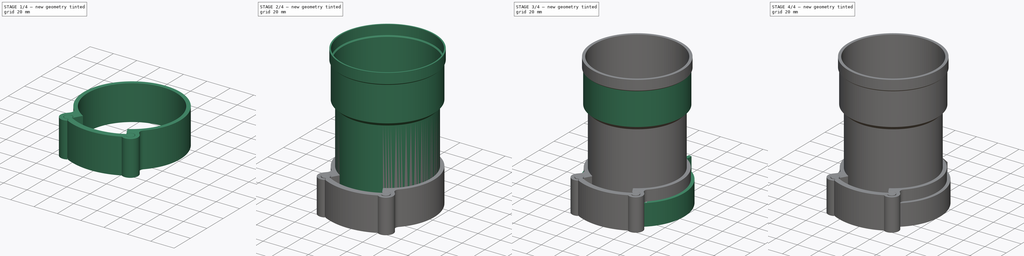
[diagram: build sequence overview — one tinted view per stage of 4, left to right]
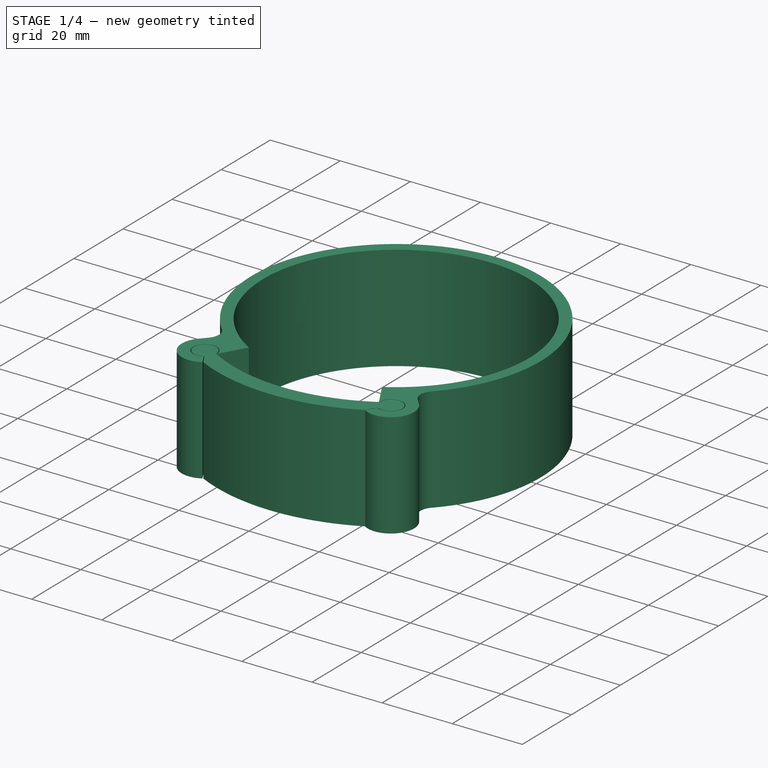
[diagram: stage 1 of 4 — iso view after this stage's code; geometry added in this stage tinted green]
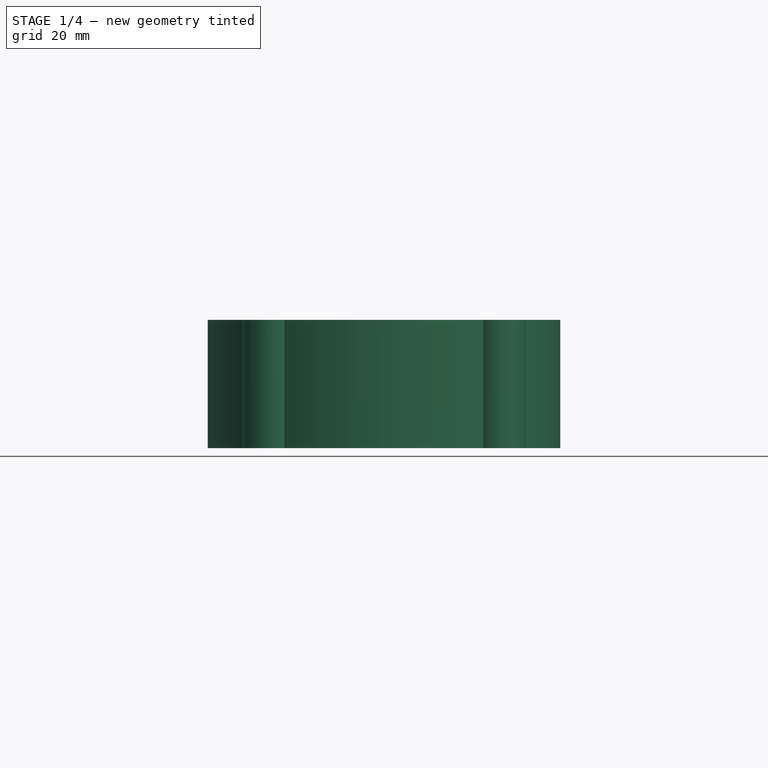
[diagram: stage 1 of 4 — front view after this stage's code; geometry added in this stage tinted green]
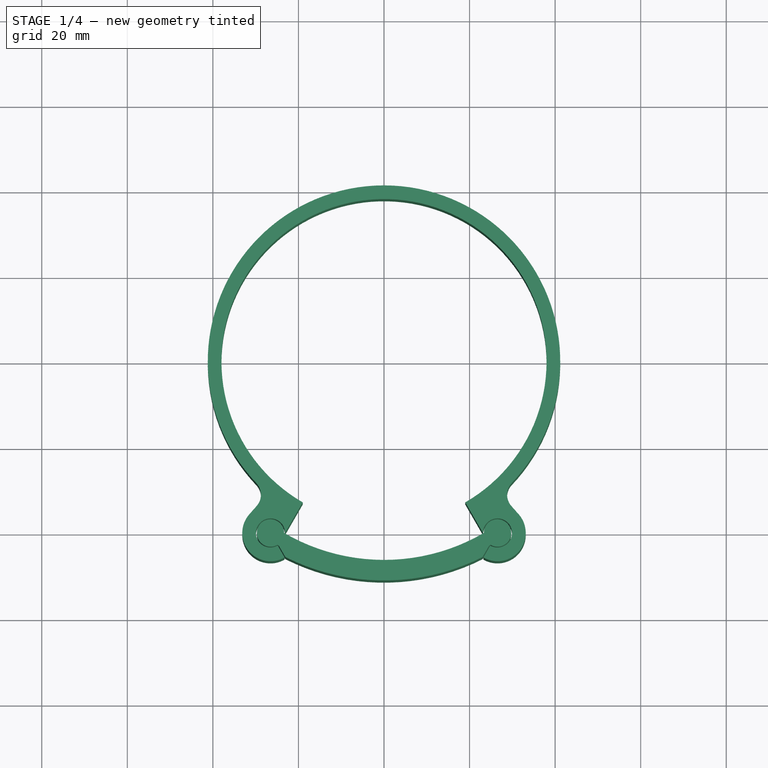
[diagram: stage 1 of 4 — top view after this stage's code; geometry added in this stage tinted green]
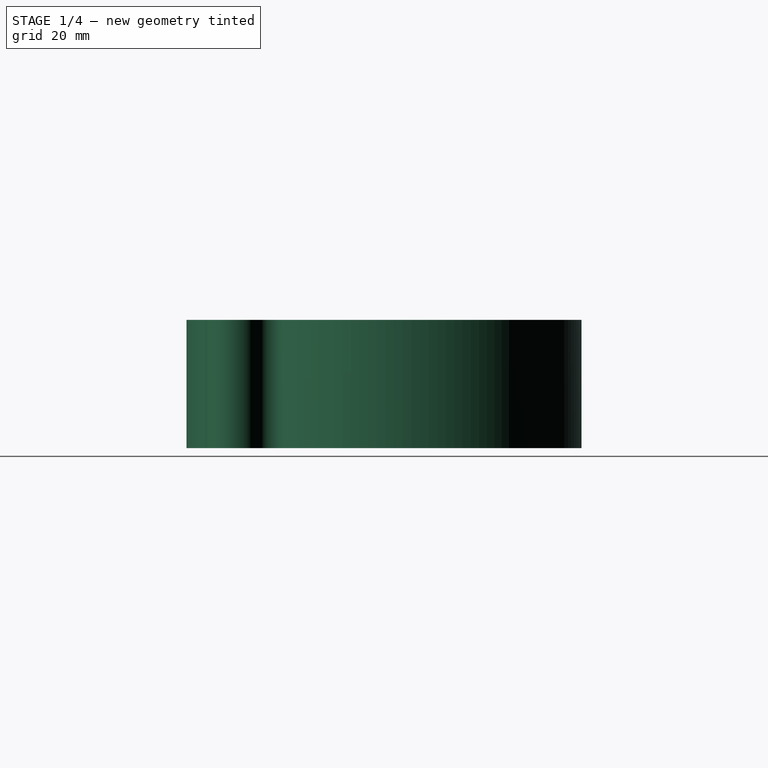
[diagram: stage 1 of 4 — right view after this stage's code; geometry added in this stage tinted green]
FCSTD DOCUMENT  (FreeCAD 1.0R39109 (Git))
Label: RainPipeParts
License: All rights reserved
LicenseURL: http://en.wikipedia.org/wiki/All_rights_reserved
objects: Sketcher::SketchObject×8, PartDesign::Body×5, PartDesign::Fillet×4, PartDesign::Pad×3, PartDesign::Plane×2, PartDesign::Pocket×2, PartDesign::Chamfer×2, PartDesign::Revolution×2, PartDesign::ShapeBinder×1
note: 63 computed .brp shape members not serialized (recipe doc carries the construction recipe); baked Part::Feature solids carry a one-line shape summary decoded from their .brp

FEATURE [PartDesign::Body] Body002  label="Joiner_vase"
  AllowCompound = false
  Group = -> [Sketch005,Revolution001]
  Origin = -> Origin002
  Tip = -> Revolution001
FEATURE [Sketcher::SketchObject] Sketch006
  ArcFitTolerance = 1e-06
  AttachmentSupport = -> [XY_Plane002]
  FullyConstrained = true
  MakeInternals = false
  MapMode = 5
  expr: Constraints[32] = .Constraints.Thickness + 0.2 mm
  expr: Constraints[55] = .Constraints.Thickness * 2
  sketch-geometry (21):
    g0: ArcOfCircle CenterX=0 CenterY=0 CenterZ=0 NormalX=0 NormalY=0 NormalZ=1 AngleXU=0 Radius=38 StartAngle=5.23599 EndAngle=10.472
    g1: LineSegment StartX=19 StartY=-32.909 StartZ=0 EndX=23.1325 EndY=-40.0667 EndZ=0
    g2: LineSegment [constr] StartX=-19 StartY=-32.909 StartZ=0 EndX=19 EndY=-32.909 EndZ=0
    g3: ArcOfCircle CenterX=0 CenterY=0 CenterZ=0 NormalX=0 NormalY=0 NormalZ=1 AngleXU=0 Radius=41.2 StartAngle=5.43508 EndAngle=10.2729
    g4: LineSegment [constr] StartX=-27.2498 StartY=-30.9013 StartZ=0 EndX=-25.1333 EndY=-28.5012 EndZ=0
    g5: LineSegment StartX=-19 StartY=-32.909 StartZ=0 EndX=-23.1325 EndY=-40.0667 EndZ=0
    g6: LineSegment [constr] StartX=-19 StartY=-32.909 StartZ=0 EndX=0 EndY=0 EndZ=0
    g7: LineSegment [constr] StartX=19 StartY=-32.909 StartZ=0 EndX=0 EndY=0 EndZ=0
    g8: LineSegment [constr] StartX=27.2498 StartY=-30.9013 StartZ=0 EndX=25.1333 EndY=-28.5012 EndZ=0
    g9: LineSegment StartX=-27.2498 StartY=-30.9013 StartZ=0 EndX=-31.4828 EndY=-35.7015 EndZ=0
    g10: LineSegment StartX=27.2498 StartY=-30.9013 StartZ=0 EndX=31.4828 EndY=-35.7015 EndZ=0
    g11: ArcOfCircle CenterX=-26.5325 CenterY=-40.0667 CenterZ=0 NormalX=0 NormalY=0 NormalZ=1 AngleXU=0 Radius=3.4 StartAngle=-3.82e-14 EndAngle=5.23599
    g12: LineSegment [constr] StartX=-23.1325 StartY=-40.0667 StartZ=0 EndX=-24.8325 EndY=-43.0112 EndZ=0
    g13: LineSegment StartX=-24.8325 StartY=-43.0112 StartZ=0 EndX=-23.2325 EndY=-45.7825 EndZ=0
    g14: ArcOfCircle CenterX=-26.5325 CenterY=-40.0667 CenterZ=0 NormalX=0 NormalY=0 NormalZ=1 AngleXU=0 Radius=6.6 StartAngle=2.41891 EndAngle=5.23599
    g15: LineSegment [constr] StartX=-31.4828 StartY=-35.7015 StartZ=0 EndX=-29.0827 EndY=-37.818 EndZ=0
    g16: LineSegment [constr] StartX=-29.0827 StartY=-37.818 StartZ=0 EndX=-26.5325 EndY=-40.0667 EndZ=0
    g17: ArcOfCircle CenterX=26.5325 CenterY=-40.0667 CenterZ=0 NormalX=0 NormalY=0 NormalZ=1 AngleXU=0 Radius=6.6 StartAngle=4.18879 EndAngle=7.00587
    g18: LineSegment [constr] StartX=23.1325 StartY=-40.0667 StartZ=0 EndX=24.8325 EndY=-43.0112 EndZ=0
    g19: LineSegment StartX=24.8325 StartY=-43.0112 StartZ=0 EndX=23.2325 EndY=-45.7825 EndZ=0
    g20: ArcOfCircle CenterX=26.5325 CenterY=-40.0667 CenterZ=0 NormalX=0 NormalY=0 NormalZ=1 AngleXU=0 Radius=3.4 StartAngle=4.18879 EndAngle=9.42478
  constraints (58):
    c: Radius(g0) = 38
    c: Coincident(g1,g0)
    c: Coincident(g2,g0)
    c: Coincident(g2,g0)
    c: Horizontal(g2)
    c: Coincident(g4,g3)
    c: PointOnObject(g4,g0)
    c: Distance(g4) = 3.2  'Thickness'
    c: Coincident(g3,g0)
    c: PointOnObject(g0,g4)
    c: Coincident(g5,g0)
    c: Coincident(g6,g0)
    c: Coincident(g6,g0)
    c: Coincident(g7,g0)
    c: Angle(g6,g7) = 1.0472
    c: Coincident(g8,g3)
    c: PointOnObject(g8,g0)
    c: Coincident(g7,g0)
    c: PointOnObject(g0,g8)
    c: Equal(g1,g5)
    c: Coincident(g-1,g0)  '__ANCHOR__'
    c: Parallel(g5,g6)
    c: Parallel(g7,g1)
    c: Coincident(g9,g3)
    c: Parallel(g9,g4)
    c: Coincident(g10,g3)
    c: Parallel(g10,g8)
    c: Coincident(g11,g5)
    c: Coincident(g12,g5)
    c: Coincident(g12,g11)
    c: Parallel(g12,g5)
    c: Coincident(g13,g11)
    c: Radius(g11) = 3.4
    c: Coincident(g14,g11)
    c: Coincident(g14,g13)
    c: Tangent(g9,g14) = -1.5708
    c: Coincident(g15,g9)
    c: PointOnObject(g15,g11)
    c: PointOnObject(g11,g15)
    c: Equal(g15,g4)
    c: Coincident(g16,g15)
    c: Coincident(g16,g11)
    c: Equal(g16,g12)
    c: Equal(g9,g10)
    c: Tangent(g10,g17) = 1.5708
    c: Equal(g17,g14)
    c: Coincident(g18,g1)
    c: Coincident(g19,g18)
    c: Parallel(g1,g18)
    c: Coincident(g19,g17)
    c: Equal(g18,g12)
    c: Equal(g20,g11)
    c: Coincident(g20,g17)
    c: Coincident(g20,g1)
    c: PointOnObject(g20,g19)
    c: Distance(g9) = 6.4
    c: PointOnObject(g11,g13)
    c: PointOnObject(g17,g19)
FEATURE [PartDesign::Pad] Pad001
  Direction = (0,0,1)
  Length = 30
  Length2 = 10
  Profile = -> Sketch006
  ReferenceAxis = -> Sketch006 [N_Axis]
  Suppressed = false
  Type = 0
FEATURE [PartDesign::ShapeBinder] ShapeBinder
  Support = -> [Sketch006]
  TraceSupport = false
FEATURE [PartDesign::Fillet] Fillet003
  Base = -> Pad001 [Edge26,Edge23]
  BaseFeature = -> Pad001
  Radius = 4
  SupportTransform = false
  Suppressed = false
  UseAllEdges = false
FEATURE [PartDesign::Body] Body003  label="JoinerFix"
  AllowCompound = false
  Group = -> [Sketch006,Pad001,Fillet003,Chamfer001,Fillet004]
  Origin = -> Origin003
  Tip = -> Fillet004
FEATURE [Sketcher::SketchObject] Sketch007
  ArcFitTolerance = 1e-06
  AttachmentSupport = -> [XY_Plane003]
  ExternalGeometry = -> [ShapeBinder]
  FullyConstrained = true
  MakeInternals = false
  MapMode = 5
  sketch-geometry (16):
    g0: ArcOfCircle CenterX=0 CenterY=0 CenterZ=0 NormalX=0 NormalY=0 NormalZ=1 AngleXU=0 Radius=46.3654 StartAngle=4.18505 EndAngle=5.23972
    g1: ArcOfCircle CenterX=0 CenterY=0 CenterZ=0 NormalX=0 NormalY=0 NormalZ=1 AngleXU=0 Radius=51.1708 StartAngle=4.24488 EndAngle=5.1799
    g2: LineSegment [constr] StartX=-27.2498 StartY=-30.9013 StartZ=0 EndX=-25.1333 EndY=-28.5012 EndZ=0
    g3: ArcOfCircle CenterX=-26.5325 CenterY=-40.0667 CenterZ=0 NormalX=0 NormalY=0 NormalZ=1 AngleXU=0 Radius=3.2 StartAngle=-4.26e-14 EndAngle=5.23599
    g4: LineSegment [constr] StartX=-23.3325 StartY=-40.0667 StartZ=0 EndX=-26.5325 EndY=-40.0667 EndZ=0
    g5: LineSegment [constr] StartX=-23.3325 StartY=-40.0667 StartZ=0 EndX=-24.9325 EndY=-42.838 EndZ=0
    g6: LineSegment [constr] StartX=-23.1325 StartY=-40.0667 StartZ=0 EndX=-23.3325 EndY=-40.0667 EndZ=0
    g7: ArcOfCircle CenterX=0 CenterY=0 CenterZ=0 NormalX=0 NormalY=0 NormalZ=1 AngleXU=0 Radius=49.5654 StartAngle=4.1853 EndAngle=4.19336
    g8: LineSegment StartX=-24.5864 StartY=-43.0377 StartZ=0 EndX=-23.0609 EndY=-45.6799 EndZ=0
    g9: LineSegment [constr] StartX=-24.5864 StartY=-43.0377 StartZ=0 EndX=-24.7596 EndY=-43.1377 EndZ=0
    g10: ArcOfCircle [constr] CenterX=-26.5325 CenterY=-40.0667 CenterZ=0 NormalX=0 NormalY=0 NormalZ=1 AngleXU=0 Radius=6.6 StartAngle=5.23599 EndAngle=5.2663
    g11: ArcOfCircle CenterX=26.5325 CenterY=-40.0667 CenterZ=0 NormalX=0 NormalY=0 NormalZ=1 AngleXU=0 Radius=3.2 StartAngle=4.18879 EndAngle=9.42478
    g12: LineSegment [constr] StartX=24.9325 StartY=-42.838 StartZ=0 EndX=23.3325 EndY=-40.0667 EndZ=0
    g13: ArcOfCircle [constr] CenterX=26.5325 CenterY=-40.0667 CenterZ=0 NormalX=0 NormalY=0 NormalZ=1 AngleXU=0 Radius=6.6 StartAngle=4.15848 EndAngle=4.18879
    g14: LineSegment StartX=23.0609 StartY=-45.6799 StartZ=0 EndX=24.5864 EndY=-43.0377 EndZ=0
    g15: ArcOfCircle CenterX=0 CenterY=0 CenterZ=0 NormalX=0 NormalY=0 NormalZ=1 AngleXU=0 Radius=49.5654 StartAngle=5.23142 EndAngle=5.23948
  constraints (42):
    c: Coincident(g1,g0)
    c: Coincident(g-3,g0)
    c: Coincident(g2,g-3)
    c: PointOnObject(g2,g-4)
    c: PointOnObject(g-3,g2)
    c: Coincident(g3,g-5)
    c: Coincident(g4,g3)
    c: Coincident(g4,g3)
    c: Equal(g4,g2)
    c: Coincident(g0,g3)
    c: Coincident(g5,g0)
    c: Coincident(g5,g3)
    c: Equal(g4,g5)
    c: Coincident(g6,g-9)
    c: Coincident(g6,g0)
    c: PointOnObject(g3,g6)
    c: Coincident(g8,g7)
    c: Parallel(g8,g-7)
    c: Coincident(g9,g7)
    c: PointOnObject(g9,g-7)
    c: Perpendicular(g9,g-7)
    c: Equal(g6,g9)
    c: Coincident(g7,g3)
    c: Coincident(g-3,g7)
    c: Coincident(g1,g8)
    c: Coincident(g10,g3)
    c: Coincident(g10,g-7)
    c: Coincident(g10,g1)
    c: Coincident(g11,g-6)
    c: Equal(g11,g3)
    c: Coincident(g0,g11)
    c: Coincident(g12,g11)
    c: Coincident(g12,g0)
    c: Equal(g12,g5)
    c: Coincident(g13,g11)
    c: Coincident(g13,g-8)
    c: Coincident(g13,g1)
    c: Coincident(g14,g1)
    c: Parallel(g14,g-8)
    c: Coincident(g15,g11)
    c: Coincident(g15,g14)
    c: Coincident(g-3,g15)
FEATURE [PartDesign::Pad] Pad002
  Direction = (0,0,1)
  Length = 30
  Length2 = 10
  Profile = -> Sketch007
  ReferenceAxis = -> Sketch007 [N_Axis]
  Suppressed = false
  Type = 0
  expr: Length = <<Pad001>>.Length
FEATURE [PartDesign::Body] Body004  label="JoinerFixLock"
  AllowCompound = false
  Group = -> [ShapeBinder,Sketch007,Pad002]
  Origin = -> Origin004
  Tip = -> Pad002
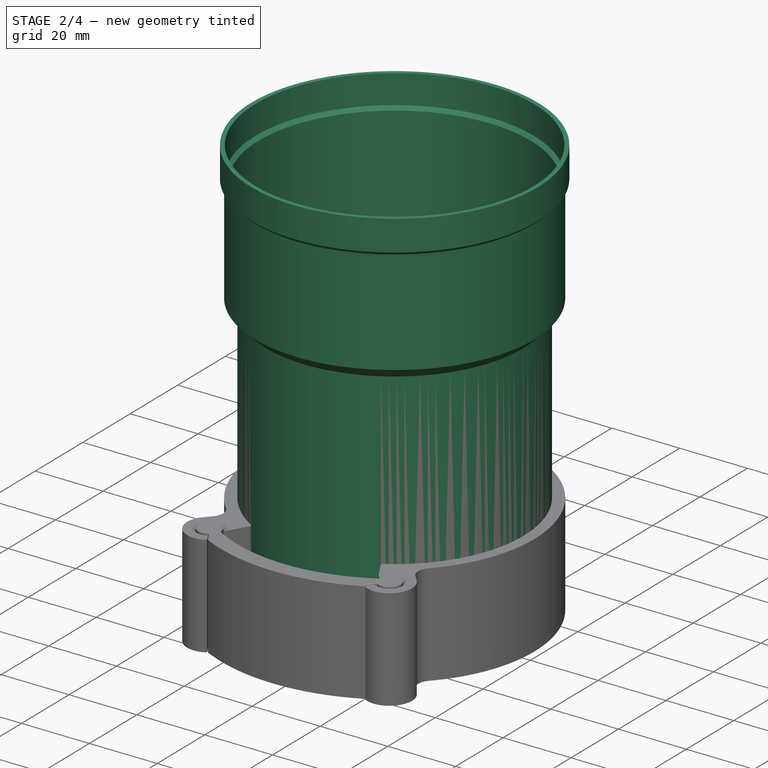
[diagram: stage 2 of 4 — iso view after this stage's code; geometry added in this stage tinted green]
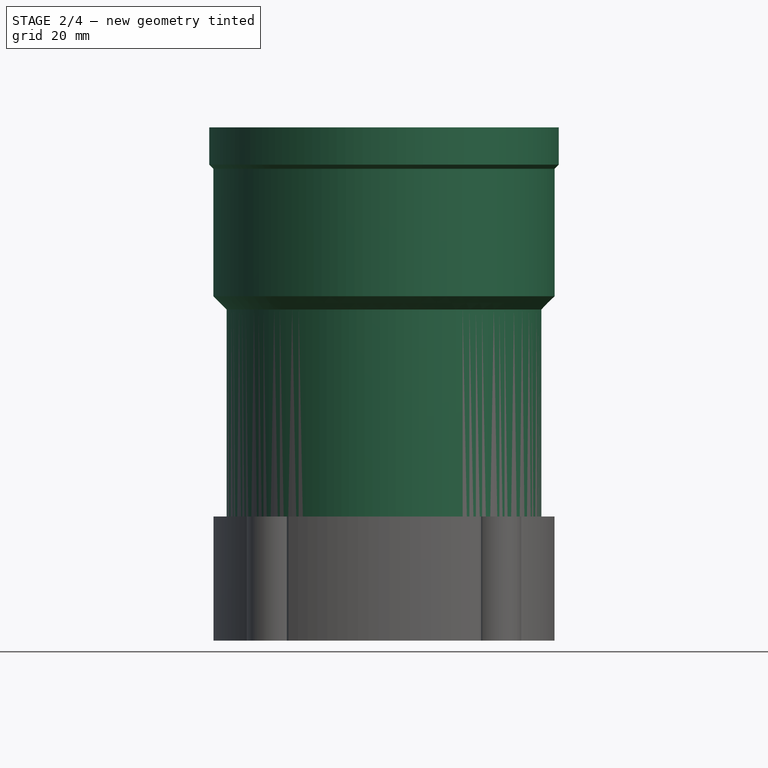
[diagram: stage 2 of 4 — front view after this stage's code; geometry added in this stage tinted green]
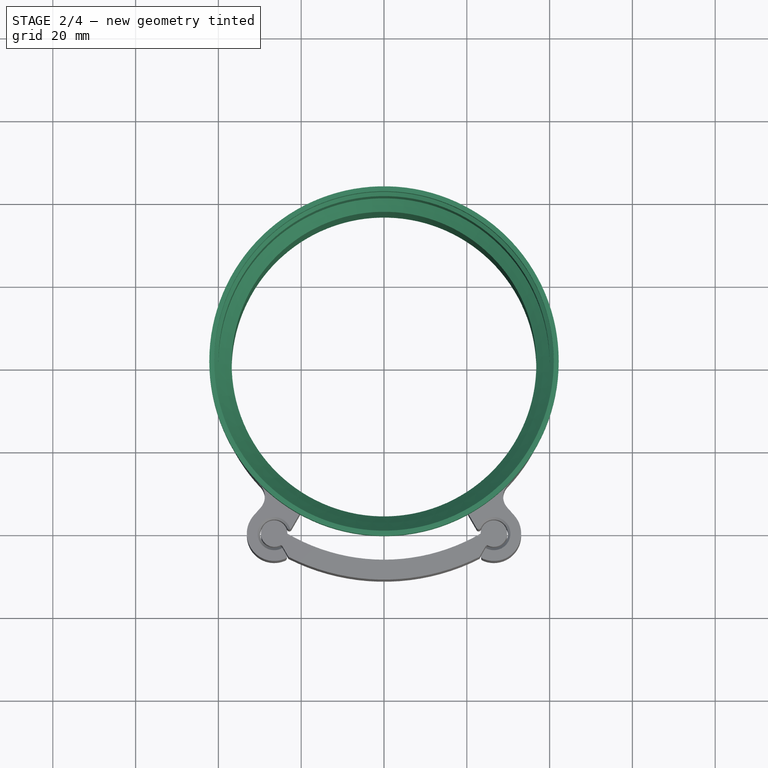
[diagram: stage 2 of 4 — top view after this stage's code; geometry added in this stage tinted green]
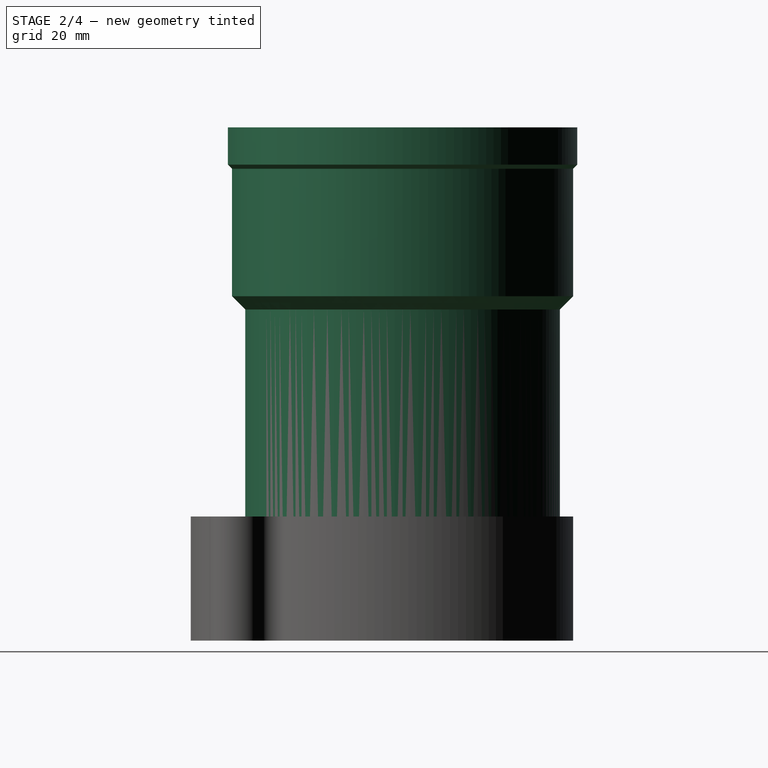
[diagram: stage 2 of 4 — right view after this stage's code; geometry added in this stage tinted green]
FEATURE [PartDesign::Body] Body001  label="Joiner"
  AllowCompound = false
  Group = -> [Sketch004,Revolution]
  Origin = -> Origin001
  Tip = -> Revolution
FEATURE [Sketcher::SketchObject] Sketch005
  ArcFitTolerance = 1e-06
  AttachmentSupport = -> [XZ_Plane001]
  FullyConstrained = true
  MakeInternals = false
  MapMode = 5
  Placement = pos=(0,0,0) rot=(1,0,0;1.5708rad)
  sketch-geometry (15):
    g0: LineSegment StartX=-38 StartY=0 StartZ=0 EndX=-36.8 EndY=0 EndZ=0
    g1: LineSegment StartX=-36.8 StartY=0 StartZ=0 EndX=-36.8 EndY=80.4971 EndZ=0
    g2: LineSegment StartX=-36.8 StartY=80.4971 StartZ=0 EndX=-40 EndY=83.6971 EndZ=0
    g3: LineSegment StartX=-40 StartY=83.6971 StartZ=0 EndX=-40 EndY=114.497 EndZ=0
    g4: LineSegment StartX=-40 StartY=114.497 StartZ=0 EndX=-41 EndY=115.497 EndZ=0
    g5: LineSegment StartX=-41 StartY=115.497 StartZ=0 EndX=-41 EndY=124 EndZ=0
    g6: LineSegment StartX=-41 StartY=124 StartZ=0 EndX=-42.2 EndY=124 EndZ=0
    g7: LineSegment StartX=-42.2 StartY=124 StartZ=0 EndX=-42.2 EndY=115 EndZ=0
    g8: LineSegment StartX=-42.2 StartY=115 StartZ=0 EndX=-41.2 EndY=114 EndZ=0
    g9: LineSegment StartX=-41.2 StartY=114 StartZ=0 EndX=-41.2 EndY=83.2 EndZ=0
    g10: LineSegment StartX=-41.2 StartY=83.2 StartZ=0 EndX=-38 EndY=80 EndZ=0
    g11: LineSegment StartX=-38 StartY=80 StartZ=0 EndX=-38 EndY=0 EndZ=0
    g12: LineSegment [constr] StartX=-41 StartY=115.497 StartZ=0 EndX=-41.8485 EndY=114.649 EndZ=0
    g13: LineSegment [constr] StartX=-40 StartY=83.6971 StartZ=0 EndX=-40.8485 EndY=82.8485 EndZ=0
    g14: LineSegment [constr] StartX=-41.2 StartY=114 StartZ=0 EndX=-40 EndY=114 EndZ=0
  constraints (45):
    c: Horizontal(g0)
    c: Coincident(g0,g1)
    c: Vertical(g1)
    c: Coincident(g1,g2)
    c: Coincident(g2,g3)
    c: Vertical(g3)
    c: Coincident(g3,g4)
    c: Coincident(g4,g5)
    c: Vertical(g5)
    c: Coincident(g5,g6)
    c: Coincident(g6,g7)
    c: Vertical(g7)
    c: Coincident(g7,g8)
    c: Coincident(g8,g9)
    c: Vertical(g9)
    c: Coincident(g9,g10)
    c: Coincident(g10,g11)
    c: Coincident(g11,g0)
    c: Vertical(g11)
    c: Angle(g2,g1) = 2.35619
    c: PointOnObject(g0,g-1)
    c: Parallel(g2,g10)
    c: Parallel(g10,g8)
    c: Parallel(g8,g4)
    c: Coincident(g12,g4)
    c: PointOnObject(g12,g8)
    c: Perpendicular(g12,g8)
    c: Coincident(g13,g2)
    c: PointOnObject(g13,g10)
    c: Perpendicular(g10,g13)
    c: DistanceX(g0,g0) = 1.2
    c: Equal(g0,g13)
    c: Equal(g13,g12)
    c: Equal(g12,g6)
    c: Horizontal(g6)
    c: DistanceX(g3,g-1) = 40
    c: DistanceX(g5,g3) = 1
    c: DistanceX(g0,g-1) = 38
    c: DistanceY(g0,g10) = 80
    c: Coincident(g14,g8)
    c: PointOnObject(g14,g3)
    c: Horizontal(g14)
    c: Equal(g6,g14)
    c: DistanceY(g8,g6) = 10
    c: DistanceY(g10,g6) = 44
FEATURE [PartDesign::Revolution] Revolution001
  Angle = 360
  Angle2 = 60
  Axis = (0,2e-16,1)
  Base = (0,0,0)
  Placement = pos=(0,0,0) rot=(1,0,0;1.5708rad)
  Profile = -> Sketch005
  ReferenceAxis = -> Sketch005 [V_Axis]
  Suppressed = false
  Type = 0
FEATURE [PartDesign::Chamfer] Chamfer001
  Angle = 45
  Base = -> Fillet003 [Edge25,Edge32,Edge17,Edge10]
  BaseFeature = -> Fillet003
  ChamferType = 0
  FlipDirection = false
  Size = 0.6
  Size2 = 1
  SupportTransform = false
  Suppressed = false
  UseAllEdges = false
FEATURE [PartDesign::Fillet] Fillet004
  Base = -> Chamfer001 [Edge19,Edge15,Edge24,Edge34,Edge44,Edge47,Edge30,Edge27]
  BaseFeature = -> Chamfer001
  Radius = 0.6
  SupportTransform = false
  Suppressed = false
  UseAllEdges = false
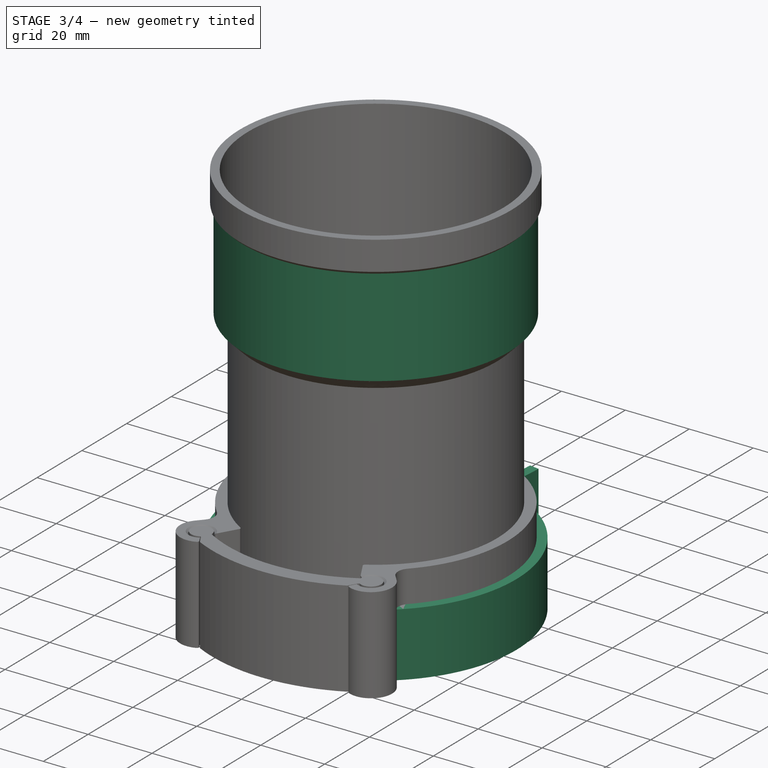
[diagram: stage 3 of 4 — iso view after this stage's code; geometry added in this stage tinted green]
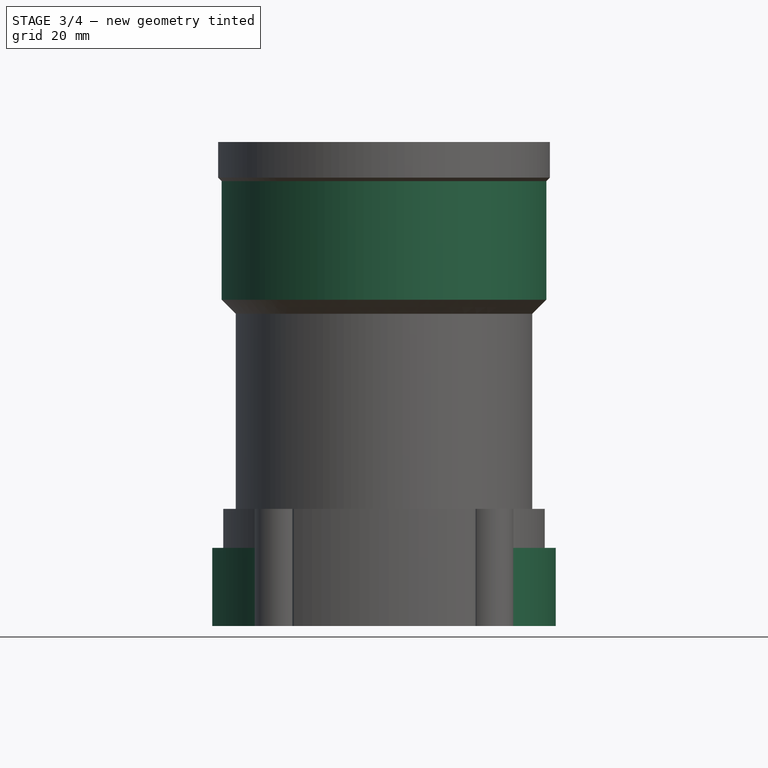
[diagram: stage 3 of 4 — front view after this stage's code; geometry added in this stage tinted green]
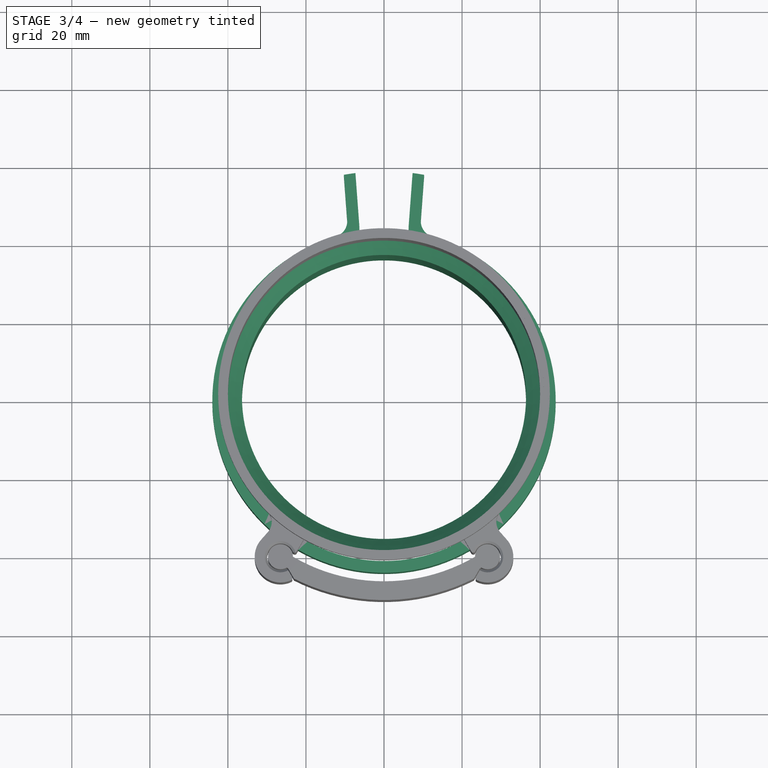
[diagram: stage 3 of 4 — top view after this stage's code; geometry added in this stage tinted green]
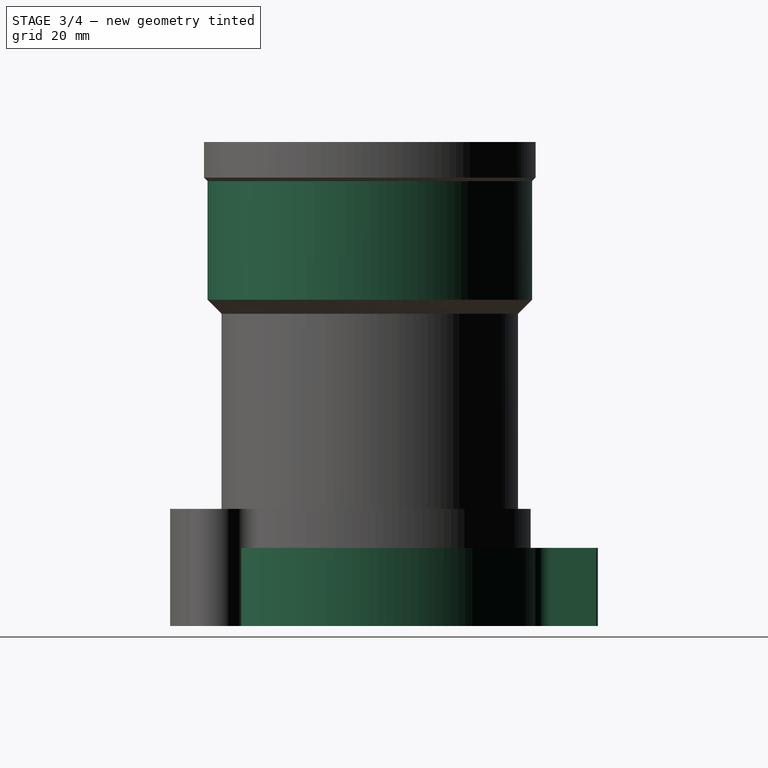
[diagram: stage 3 of 4 — right view after this stage's code; geometry added in this stage tinted green]
FEATURE [Sketcher::SketchObject] Sketch
  ArcFitTolerance = 0
  AttachmentSupport = -> [XY_Plane]
  FullyConstrained = true
  MakeInternals = false
  MapMode = 5
  sketch-geometry (16):
    g0: ArcOfCircle CenterX=0 CenterY=0 CenterZ=0 NormalX=0 NormalY=0 NormalZ=1 AngleXU=0 Radius=44 StartAngle=1.78123 EndAngle=7.64355
    g1: LineSegment [constr] StartX=-9.19095 StartY=43.0294 StartZ=0 EndX=9.19095 EndY=43.0294 EndZ=0
    g2: ArcOfCircle CenterX=0 CenterY=0 CenterZ=0 NormalX=0 NormalY=0 NormalZ=1 AngleXU=0 Radius=41 StartAngle=1.71767 EndAngle=7.70711
    g3: LineSegment [constr] StartX=-9.19095 StartY=43.0294 StartZ=0 EndX=-8.5643 EndY=40.0955 EndZ=0
    g4: LineSegment StartX=-9.19095 StartY=43.0294 StartZ=0 EndX=-10.2974 EndY=57.9885 EndZ=0
    g5: LineSegment StartX=-7.32254 StartY=58.4387 StartZ=0 EndX=-6 EndY=40.5586 EndZ=0
    g6: LineSegment StartX=9.19095 StartY=43.0294 StartZ=0 EndX=10.2974 EndY=57.9885 EndZ=0
    g7: LineSegment StartX=7.32254 StartY=58.4387 StartZ=0 EndX=6 EndY=40.5586 EndZ=0
    g8: ArcOfCircle CenterX=0 CenterY=0 CenterZ=0 NormalX=0 NormalY=0 NormalZ=1 AngleXU=0 Radius=58.8957 StartAngle=1.69545 EndAngle=1.74654
    g9: ArcOfCircle CenterX=0 CenterY=0 CenterZ=0 NormalX=0 NormalY=0 NormalZ=1 AngleXU=0 Radius=58.8957 StartAngle=1.39505 EndAngle=1.44614
    g10: LineSegment [constr] StartX=-9.19095 StartY=43.0294 StartZ=0 EndX=-6.19912 EndY=43.2507 EndZ=0
    g11: LineSegment [constr] StartX=-3 StartY=40.5586 StartZ=0 EndX=0 EndY=0 EndZ=0
    g12: LineSegment [constr] StartX=0 StartY=0 StartZ=0 EndX=3 EndY=40.5586 EndZ=0
    g13: LineSegment [constr] StartX=-6 StartY=40.5586 StartZ=0 EndX=-3 EndY=40.5586 EndZ=0
    g14: LineSegment [constr] StartX=-3 StartY=40.5586 StartZ=0 EndX=3 EndY=40.5586 EndZ=0
    g15: LineSegment [constr] StartX=3 StartY=40.5586 StartZ=0 EndX=6 EndY=40.5586 EndZ=0
  constraints (44):
    c: Coincident(g1,g0)
    c: Coincident(g1,g0)
    c: Horizontal(g1)
    c: Coincident(g2,g0)
    c: Radius(g2) = 41
    c: Coincident(g13,g2)
    c: Coincident(g15,g2)
    c: Coincident(g3,g0)
    c: Distance(g3) = 3
    c: Coincident(g4,g0)
    c: Coincident(g5,g2)
    c: Coincident(g6,g0)
    c: Coincident(g7,g2)
    c: Coincident(g8,g0)
    c: Coincident(g8,g4)
    c: Coincident(g8,g5)
    c: Coincident(g9,g0)
    c: Coincident(g9,g6)
    c: Coincident(g9,g7)
    c: PointOnObject(g0,g3)
    c: Parallel(g5,g4)
    c: Parallel(g7,g6)
    c: Equal(g9,g8)
    c: Distance(g4) = 15
    c: PointOnObject(g3,g2)
    c: Coincident(g10,g0)
    c: PointOnObject(g10,g5)
    c: Perpendicular(g5,g10)
    c: Equal(g3,g10)
    c: DistanceX(g13,g15) = 12
    c: Coincident(g0,g-1)
    c: Coincident(g11,g0)
    c: Coincident(g12,g0)
    c: Coincident(g13,g14)
    c: Horizontal(g13)
    c: PointOnObject(g12,g13)
    c: Coincident(g14,g15)
    c: Horizontal(g15)
    c: Coincident(g12,g14)
    c: Coincident(g11,g13)
    c: Equal(g13,g15)
    c: DistanceX(g14,g14) = 6
    c: Parallel(g5,g11)
    c: Parallel(g7,g12)
FEATURE [PartDesign::Pad] Pad
  Direction = (0,0,1)
  Length = 20
  Length2 = 10
  Profile = -> Sketch
  ReferenceAxis = -> Sketch [N_Axis]
  Suppressed = false
  Type = 0
FEATURE [PartDesign::Fillet] Fillet
  Base = -> Pad [Edge8,Edge5]
  BaseFeature = -> Pad
  Radius = 4
  SupportTransform = false
  Suppressed = false
  UseAllEdges = false
FEATURE [PartDesign::Fillet] Fillet001
  Base = -> Fillet [Edge26,Edge28]
  BaseFeature = -> Fillet
  Radius = 5
  SupportTransform = false
  Suppressed = false
  UseAllEdges = false
  expr: Radius = <<Fillet>>.Radius + 1 mm
FEATURE [PartDesign::Body] Body  label="Clamp"
  AllowCompound = false
  Group = -> [Sketch,Pad,Fillet,Fillet001,Sketch003,DatumPlane,Sketch001,Pocket,DatumPlane001,Sketch002,Pocket001,Chamfer]
  Origin = -> Origin
  Tip = -> Chamfer
FEATURE [Sketcher::SketchObject] Sketch004
  ArcFitTolerance = 1e-06
  AttachmentSupport = -> [XZ_Plane]
  FullyConstrained = true
  MakeInternals = false
  MapMode = 5
  Placement = pos=(0,0,0) rot=(1,0,0;1.5708rad)
  sketch-geometry (12):
    g0: LineSegment StartX=-41.6 StartY=83.6 StartZ=0 EndX=-38 EndY=80 EndZ=0
    g1: LineSegment StartX=-38 StartY=80 StartZ=0 EndX=-38 EndY=0 EndZ=0
    g2: LineSegment StartX=-38 StartY=0 StartZ=0 EndX=-36.4 EndY=0 EndZ=0
    g3: LineSegment StartX=-36.4 StartY=0 StartZ=0 EndX=-36.4 EndY=80.6627 EndZ=0
    g4: LineSegment StartX=-36.4 StartY=80.6627 StartZ=0 EndX=-40 EndY=84.2627 EndZ=0
    g5: LineSegment StartX=-40 StartY=84.2627 StartZ=0 EndX=-40 EndY=124 EndZ=0
    g6: LineSegment StartX=-40 StartY=124 StartZ=0 EndX=-42.5 EndY=124 EndZ=0
    g7: LineSegment [constr] StartX=-40 StartY=84.2627 StartZ=0 EndX=-41.1314 EndY=83.1314 EndZ=0
    g8: LineSegment StartX=-42.5 StartY=124 StartZ=0 EndX=-42.5 EndY=114.9 EndZ=0
    g9: LineSegment StartX=-42.5 StartY=114.9 StartZ=0 EndX=-41.6 EndY=114 EndZ=0
    g10: LineSegment StartX=-41.6 StartY=114 StartZ=0 EndX=-41.6 EndY=83.6 EndZ=0
    g11: LineSegment [constr] StartX=-41.6 StartY=114 StartZ=0 EndX=-40 EndY=114 EndZ=0
  constraints (36):
    c: Coincident(g10,g0)
    c: Coincident(g0,g1)
    c: Vertical(g1)
    c: Coincident(g1,g2)
    c: Coincident(g2,g3)
    c: Vertical(g3)
    c: Coincident(g3,g4)
    c: Coincident(g4,g5)
    c: Vertical(g5)
    c: Coincident(g5,g6)
    c: Coincident(g6,g8)
    c: Horizontal(g6)
    c: DistanceX(g6,g6) = 2.5
    c: Coincident(g7,g4)
    c: PointOnObject(g7,g0)
    c: Equal(g2,g7)
    c: DistanceX(g5,g-1) = 40
    c: DistanceX(g1,g-1) = 38
    c: Coincident(g8,g9)
    c: Vertical(g8)
    c: Vertical(g10)
    c: DistanceX(g2,g2) = 1.6
    c: Coincident(g10,g9)
    c: Coincident(g11,g9)
    c: PointOnObject(g11,g5)
    c: Horizontal(g11)
    c: Equal(g7,g11)
    c: Horizontal(g2)
    c: PointOnObject(g1,g-1)
    c: Perpendicular(g0,g7)
    c: Angle(g4,g3) = 2.35619
    c: Parallel(g0,g4)
    c: DistanceY(g9,g6) = 10
    c: Parallel(g9,g0)
    c: DistanceY(g0,g6) = 44
    c: DistanceY(g1,g0) = 80
FEATURE [PartDesign::Revolution] Revolution
  Angle = 360
  Angle2 = 60
  Axis = (0,2e-16,1)
  Base = (0,0,0)
  Placement = pos=(0,0,0) rot=(1,0,0;1.5708rad)
  Profile = -> Sketch004
  ReferenceAxis = -> Sketch004 [V_Axis]
  Suppressed = false
  Type = 0
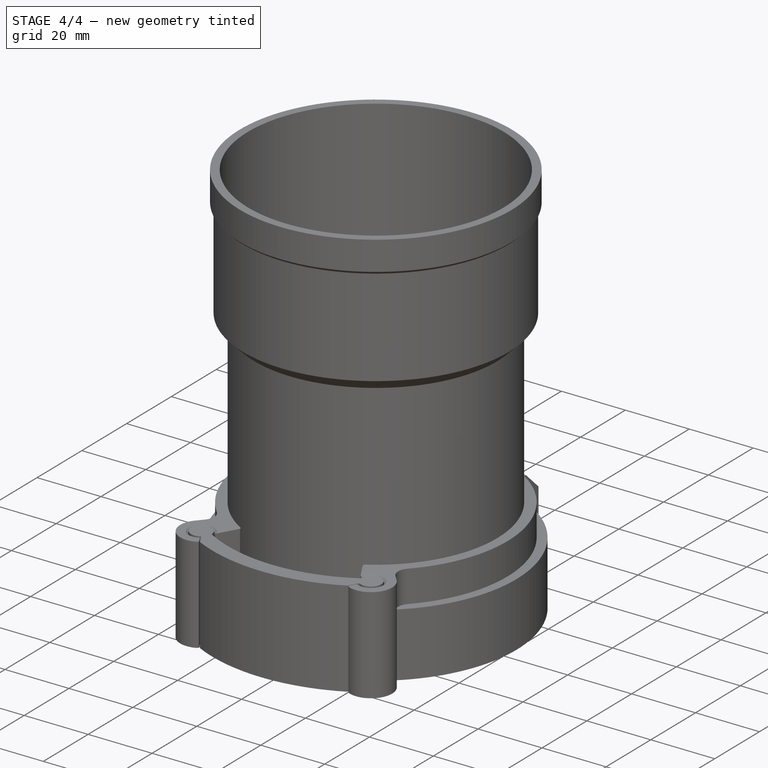
[diagram: stage 4 of 4 — iso view after this stage's code; geometry added in this stage tinted green]
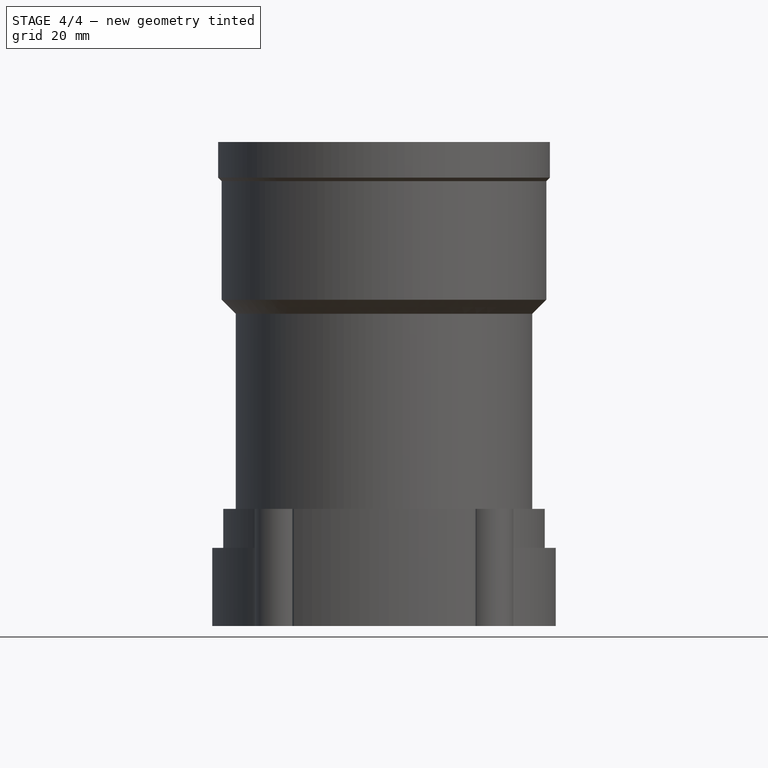
[diagram: stage 4 of 4 — front view after this stage's code; geometry added in this stage tinted green]
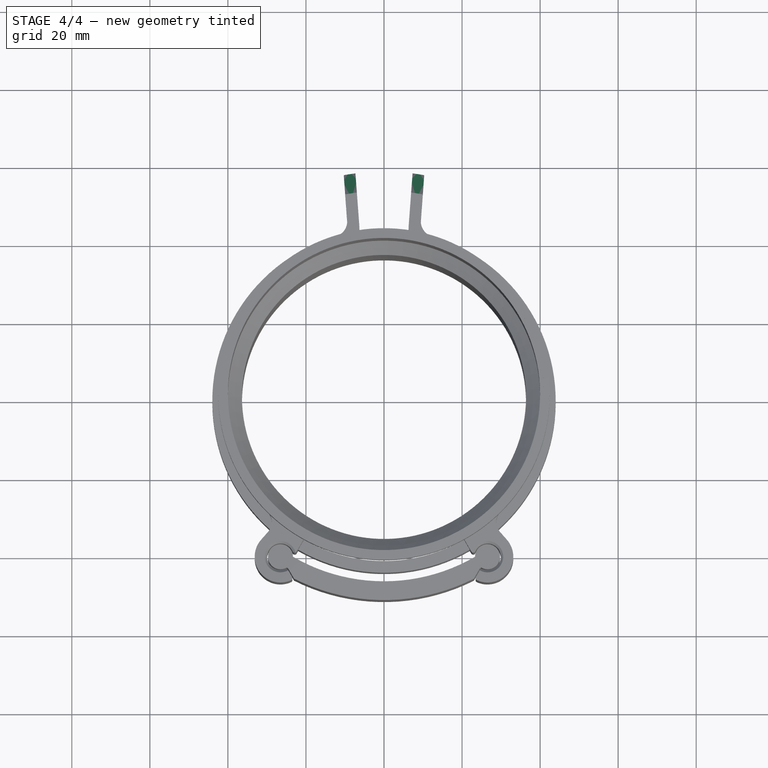
[diagram: stage 4 of 4 — top view after this stage's code; geometry added in this stage tinted green]
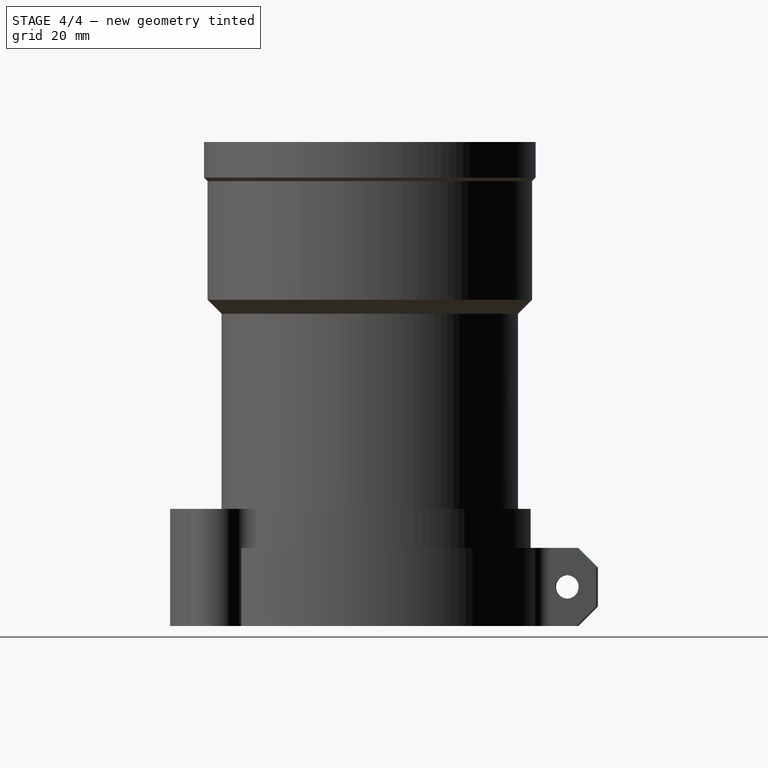
[diagram: stage 4 of 4 — right view after this stage's code; geometry added in this stage tinted green]
FEATURE [Sketcher::SketchObject] Sketch003
  ArcFitTolerance = 0
  AttachmentSupport = -> [XY_Plane]
  ExternalGeometry = -> [Sketch]
  FullyConstrained = true
  MakeInternals = false
  MapMode = 5
  sketch-geometry (2):
    g0: LineSegment StartX=-9.74419 StartY=50.5089 StartZ=0 EndX=-6.75237 EndY=50.7302 EndZ=0
    g1: LineSegment StartX=6.75237 StartY=50.7302 StartZ=0 EndX=9.74419 EndY=50.5089 EndZ=0
  constraints (6):
    c: PointOnObject(g0,g-4)
    c: PointOnObject(g1,g-5)
    c: Symmetric(g-6,g-6,g1)
    c: Symmetric(g-3,g-3,g0)
    c: Perpendicular(g-3,g0)
    c: Perpendicular(g-6,g1)
FEATURE [PartDesign::Plane] DatumPlane
  AttachmentSupport = -> [Sketch003]
  Length = 123.197
  MapMode = 7
  Placement = pos=(6.75237,50.7302,0) rot=(-0.54894,0.591043,0.591043;4.14565rad)
  ResizeMode = 0
  Width = 64.7288
FEATURE [Sketcher::SketchObject] Sketch001
  ArcFitTolerance = 0
  AttachmentSupport = -> [DatumPlane]
  FullyConstrained = true
  MakeInternals = false
  MapMode = 5
  Placement = pos=(6.75237,50.7302,0) rot=(-0.54894,0.591043,0.591043;4.14565rad)
  expr: Constraints[1] = Pad.Length / 2
  sketch-geometry (2):
    g0: LineSegment [constr] StartX=0 StartY=0 StartZ=0 EndX=0 EndY=10 EndZ=0
    g1: Circle CenterX=0 CenterY=10 CenterZ=0 NormalX=0 NormalY=0 NormalZ=1 AngleXU=0 Radius=3
  constraints (5):
    c: Vertical(g0)
    c: DistanceY(g0,g0) = 10
    c: Coincident(g1,g0)
    c: Radius(g1) = 3  'rHole'
    c: Coincident(g0,g-1)
FEATURE [PartDesign::Pocket] Pocket
  BaseFeature = -> Fillet001
  Direction = (0.997276,-0.0737655,0)
  Length = 5
  Length2 = 5
  Profile = -> Sketch001
  ReferenceAxis = -> Sketch001 [N_Axis]
  Suppressed = false
  Type = 1
FEATURE [PartDesign::Plane] DatumPlane001
  AttachmentSupport = -> [Sketch003]
  Length = 123.197
  MapMode = 7
  Placement = pos=(-6.75237,50.7302,0) rot=(0.605759,-0.562608,-0.562608;2.05231rad)
  ResizeMode = 0
  Width = 64.7288
FEATURE [Sketcher::SketchObject] Sketch002
  ArcFitTolerance = 0
  AttachmentSupport = -> [DatumPlane001]
  FullyConstrained = true
  MakeInternals = false
  MapMode = 5
  Placement = pos=(-6.75237,50.7302,0) rot=(0.605759,-0.562608,-0.562608;2.05231rad)
  expr: Constraints[1] = <<Pad>>.Length / 2
  expr: Constraints[3] = Sketch001.Constraints.rHole
  sketch-geometry (2):
    g0: LineSegment [constr] StartX=0 StartY=0 StartZ=0 EndX=0 EndY=10 EndZ=0
    g1: Circle CenterX=0 CenterY=10 CenterZ=0 NormalX=0 NormalY=0 NormalZ=1 AngleXU=0 Radius=3
  constraints (5):
    c: Vertical(g0)
    c: DistanceY(g0,g0) = 10
    c: Coincident(g1,g0)
    c: Radius(g1) = 3
    c: Coincident(g0,g-1)
FEATURE [PartDesign::Pocket] Pocket001
  BaseFeature = -> Pocket
  Direction = (0.997276,0.0737655,0)
  Length = 5
  Length2 = 5
  Profile = -> Sketch002
  ReferenceAxis = -> Sketch002 [N_Axis]
  Reversed = true
  Suppressed = false
  Type = 1
FEATURE [PartDesign::Chamfer] Chamfer
  Angle = 45
  Base = -> Pocket001 [Edge3,Edge10,Edge20,Edge36]
  BaseFeature = -> Pocket001
  ChamferType = 0
  FlipDirection = false
  Size = 5
  Size2 = 1
  SupportTransform = false
  Suppressed = false
  UseAllEdges = false
  expr: Size = <<Pad>>.Length / 4
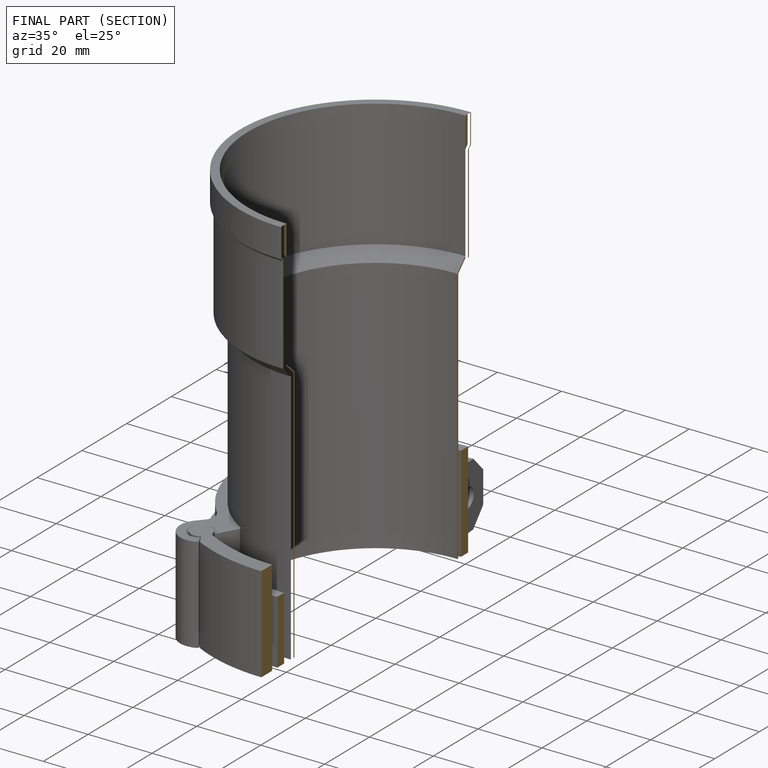
[diagram: finished part — half-section view (interior)]
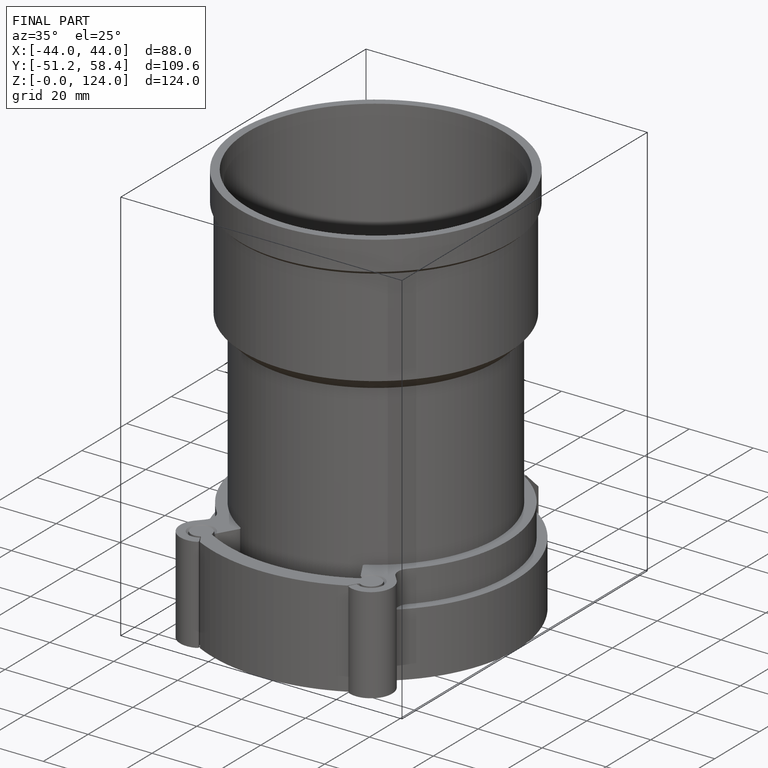
[diagram: finished part — iso view with bounding-box wireframe]
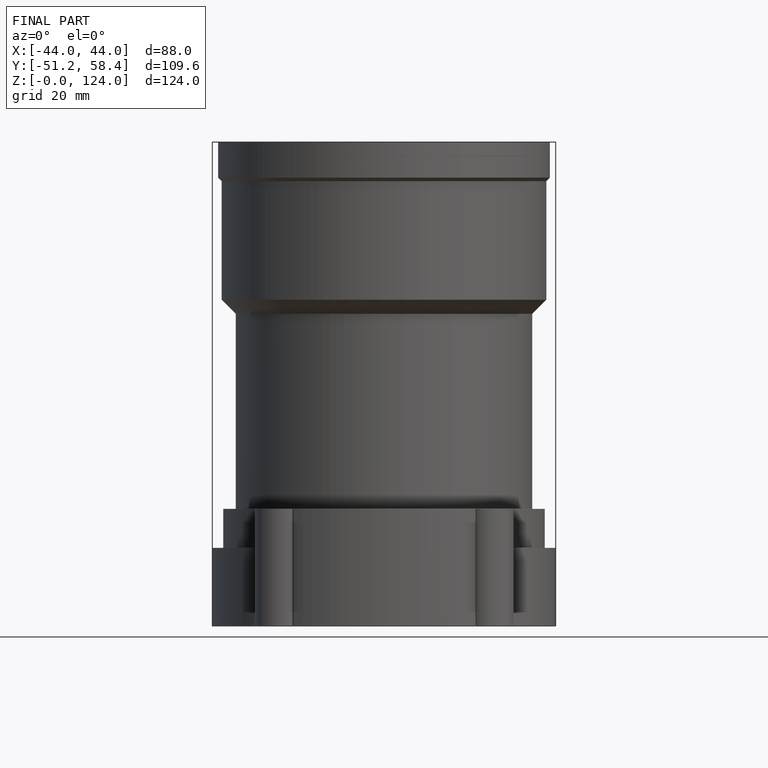
[diagram: finished part — front view with bounding-box wireframe]
